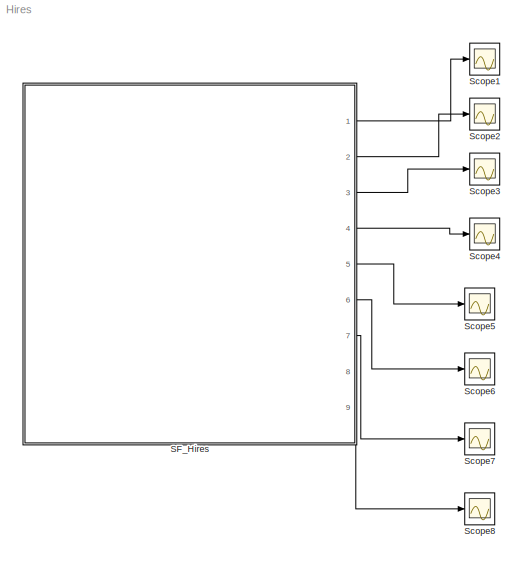
MODEL Hires
KIND model
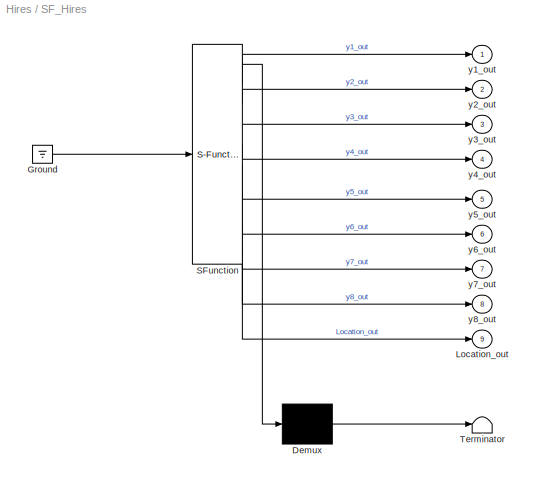
BLOCK [SubSystem] SF_Hires
  ErrorFcn = Stateflow.Translate.translate
  PermitHierarchicalResolution = ExplicitOnly
  Ports = [0, 9]
  RequestExecContextInheritance = off
  SFBlockType = Chart
  SID = 1
  TreatAsAtomicUnit = on
BLOCK [Demux] SF_Hires/ Demux 
  Outputs = 1
  Ports = [1, 1]
  SID = 1::75
BLOCK [Ground] SF_Hires/ Ground 
  SID = 1::77
BLOCK [S-Function] SF_Hires/ SFunction 
  EnableBusSupport = off
  FunctionName = sf_sfun
  PortCounts = [1 10]
  Ports = [1, 10]
  SFcnIsStateOwnerBlock = off
  SFunctionDeploymentMode = off
  SID = 1::74
  Tag = Stateflow S-Function 3
BLOCK [Terminator] SF_Hires/ Terminator 
  SID = 1::76
BLOCK [Outport] SF_Hires/Location_out
  IconDisplay = Port number
  Port = 9
  SID = 1::73
BLOCK [Outport] SF_Hires/y1_out
  IconDisplay = Port number
  SID = 1::65
BLOCK [Outport] SF_Hires/y2_out
  IconDisplay = Port number
  Port = 2
  SID = 1::66
BLOCK [Outport] SF_Hires/y3_out
  IconDisplay = Port number
  Port = 3
  SID = 1::67
BLOCK [Outport] SF_Hires/y4_out
  IconDisplay = Port number
  Port = 4
  SID = 1::68
BLOCK [Outport] SF_Hires/y5_out
  IconDisplay = Port number
  Port = 5
  SID = 1::69
BLOCK [Outport] SF_Hires/y6_out
  IconDisplay = Port number
  Port = 6
  SID = 1::70
BLOCK [Outport] SF_Hires/y7_out
  IconDisplay = Port number
  Port = 7
  SID = 1::71
BLOCK [Outport] SF_Hires/y8_out
  IconDisplay = Port number
  Port = 8
  SID = 1::72
BLOCK [Scope] Scope1
  Floating = off
  NumInputPorts = 1
  Ports = [1]
  SID = 3
  ScopeSpecificationString = C++SS(StrPVP('Location','[2152, 443, 2476, 692]'),StrPVP('Open','off'),MxPVP('AxesTitles',54,'struct(''axes1'',''%<SignalLabel>'')'),MxPVP('ScopeGraphics',57,'struct(''FigureColor'',''[0.5 0.5 0.5]'',''AxesColor'',''[0 0 0]'',''AxesTickColor'',''[1 1 1]'',''LineColors'',''[1 1 0;1 0 1;0 1 1;1 0 0;0 1 0;0 0 1]'',''LineStyles'',''-|-|-|-|-|-'',''LineWidths'',''[0.5 0.5 0.5 0.5 0.5 0.5]'',''MarkerSty...<+258ch>
BLOCK [Scope] Scope2
  Floating = off
  NumInputPorts = 1
  Ports = [1]
  SID = 4
  ScopeSpecificationString = C++SS(StrPVP('Location','[188, 365, 512, 604]'),StrPVP('Open','off'),MxPVP('AxesTitles',54,'struct(''axes1'',''%<SignalLabel>'')'),MxPVP('ScopeGraphics',57,'struct(''FigureColor'',''[0.5 0.5 0.5]'',''AxesColor'',''[0 0 0]'',''AxesTickColor'',''[1 1 1]'',''LineColors'',''[1 1 0;1 0 1;0 1 1;1 0 0;0 1 0;0 0 1]'',''LineStyles'',''-|-|-|-|-|-'',''LineWidths'',''[0.5 0.5 0.5 0.5 0.5 0.5]'',''MarkerStyle...<+256ch>  <repeated x7 — deduplicated; at blocks: Scope2, Scope3, Scope4, Scope5, Scope6, Scope7, Scope8>
BLOCK [Scope] Scope3
  Floating = off
  NumInputPorts = 1
  Ports = [1]
  SID = 5
BLOCK [Scope] Scope4
  Floating = off
  NumInputPorts = 1
  Ports = [1]
  SID = 6
BLOCK [Scope] Scope5
  Floating = off
  NumInputPorts = 1
  Ports = [1]
  SID = 7
BLOCK [Scope] Scope6
  Floating = off
  NumInputPorts = 1
  Ports = [1]
  SID = 8
BLOCK [Scope] Scope7
  Floating = off
  NumInputPorts = 1
  Ports = [1]
  SID = 9
BLOCK [Scope] Scope8
  Floating = off
  NumInputPorts = 1
  Ports = [1]
  SID = 10
LINE SF_Hires/ Demux :1 -> SF_Hires/ Terminator :1
LINE SF_Hires/ Ground :1 -> SF_Hires/ SFunction :1
LINE SF_Hires/ SFunction :1 -> SF_Hires/ Demux :1
LINE SF_Hires/ SFunction :10 -> SF_Hires/Location_out:1
LINE SF_Hires/ SFunction :2 -> SF_Hires/y1_out:1
LINE SF_Hires/ SFunction :3 -> SF_Hires/y2_out:1
LINE SF_Hires/ SFunction :4 -> SF_Hires/y3_out:1
LINE SF_Hires/ SFunction :5 -> SF_Hires/y4_out:1
LINE SF_Hires/ SFunction :6 -> SF_Hires/y5_out:1
LINE SF_Hires/ SFunction :7 -> SF_Hires/y6_out:1
LINE SF_Hires/ SFunction :8 -> SF_Hires/y7_out:1
LINE SF_Hires/ SFunction :9 -> SF_Hires/y8_out:1
LINE SF_Hires:1 -> Scope1:1
LINE SF_Hires:2 -> Scope2:1
LINE SF_Hires:3 -> Scope3:1
LINE SF_Hires:4 -> Scope4:1
LINE SF_Hires:5 -> Scope5:1
LINE SF_Hires:6 -> Scope6:1
LINE SF_Hires:7 -> Scope7:1
LINE SF_Hires:8 -> Scope8:1
CHART SF_Hires states=1 transitions=1
  STATE_LABEL 'always\\ndu:\\ny1_dot=-1.71*y1+.43*y2+8.32*y3+0.0007;\\ny2_dot=1.71*y1-8.75*y2;\\ny3_dot=-10.03*y3+.43*y4+0.035*y5;\\ny4_dot=8.32*y2+1.71*y3-1.12*y4;\\ny5_dot=-1.745*y5+0.43*y6+0.43*y7;\\ny6_dot=-280*y6*y8+0.69*y4+1.71*y5-0.43*y6+0.69*y7;\\ny7_dot=280*y6*y8-1.81*y7;\\ny8_dot=-280*y6*y8+1.81*y7;\\ny1_out=y1;\\ny2_out=y2;\\ny3_out=y3;\\ny4_out=y4;\\ny5_out=y5;\\ny6_out=y6;\\ny7_out=y7;\\ny8_out=y8;\\nLocation_out =1;'
